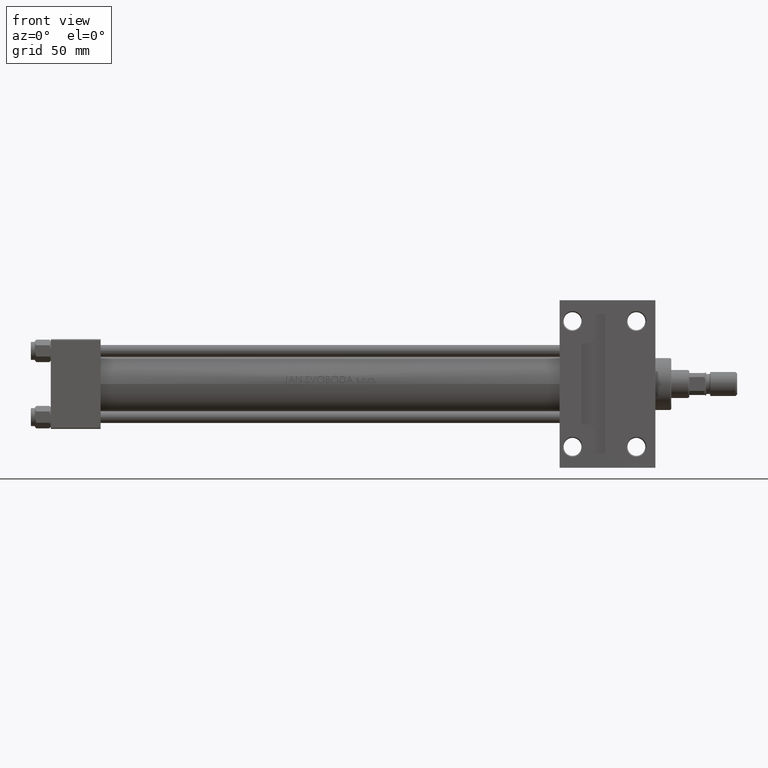
[diagram: clean part render]
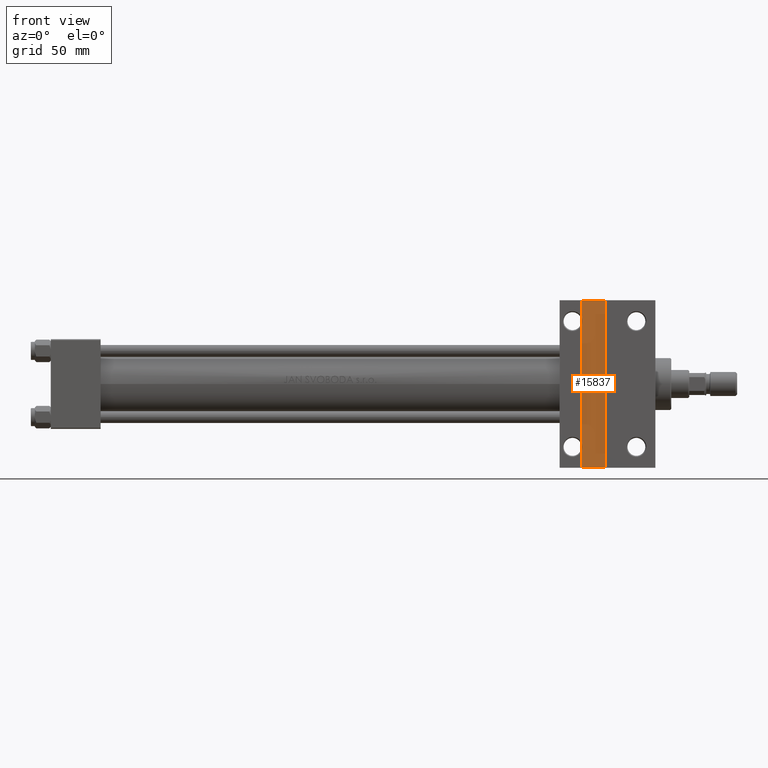
[diagram: same view with one face highlighted and labeled with its STEP entity id]
A machine part, front view. The second image highlights one B-rep face of the part: STEP entity #15837.
In plain terms, the highlighted planar face has unit normal (0, -1, 0).
Its self-contained STEP definition (entity closure, byte-faithful):
#442 = DIRECTION ( 'NONE',  ( 0.000000000000000000, 1.000000000000000000, 0.000000000000000000 ) ) ;
#732 = CARTESIAN_POINT ( 'NONE',  ( 277.9999999999999432, -41.99999999999997868, -20.00000000000000000 ) ) ;
#923 = LINE ( 'NONE', #34746, #26955 ) ;
#2377 = EDGE_CURVE ( 'NONE', #11963, #6543, #14196, .T. ) ;
#3969 = VECTOR ( 'NONE', #28829, 1000.000000000000000 ) ;
#4867 = FACE_OUTER_BOUND ( 'NONE', #39597, .T. ) ;
#6543 = VERTEX_POINT ( 'NONE', #732 ) ;
#6788 = EDGE_CURVE ( 'NONE', #29825, #22546, #923, .T. ) ;
#7563 = CARTESIAN_POINT ( 'NONE',  ( 265.9999999999999432, 41.99999999999997868, -20.00000000000000000 ) ) ;
#7816 = EDGE_CURVE ( 'NONE', #22546, #11963, #40696, .T. ) ;
#10197 = VECTOR ( 'NONE', #48059, 1000.000000000000000 ) ;
#10301 = CARTESIAN_POINT ( 'NONE',  ( 265.9999999999999432, -41.99999999999997868, -20.00000000000000000 ) ) ;
#11680 = CARTESIAN_POINT ( 'NONE',  ( 0.000000000000000000, 0.000000000000000000, -20.00000000000000000 ) ) ;
#11963 = VERTEX_POINT ( 'NONE', #44057 ) ;
#14196 = LINE ( 'NONE', #43187, #3969 ) ;
#15548 = ORIENTED_EDGE ( 'NONE', *, *, #6788, .T. ) ;
#15837 = ADVANCED_FACE ( 'NONE', ( #4867 ), #41412, .T. ) ;
#15907 = ORIENTED_EDGE ( 'NONE', *, *, #44348, .T. ) ;
#17623 = LINE ( 'NONE', #10301, #10197 ) ;
#18682 = CARTESIAN_POINT ( 'NONE',  ( 265.9999999999999432, -41.99999999999997868, -20.00000000000000000 ) ) ;
#22487 = AXIS2_PLACEMENT_3D ( 'NONE', #11680, #38445, #46012 ) ;
#22546 = VERTEX_POINT ( 'NONE', #30948 ) ;
#26955 = VECTOR ( 'NONE', #442, 1000.000000000000000 ) ;
#28613 = ORIENTED_EDGE ( 'NONE', *, *, #7816, .T. ) ;
#28829 = DIRECTION ( 'NONE',  ( -0.000000000000000000, -1.000000000000000000, -0.000000000000000000 ) ) ;
#29825 = VERTEX_POINT ( 'NONE', #18682 ) ;
#30948 = CARTESIAN_POINT ( 'NONE',  ( 265.9999999999999432, 41.99999999999997868, -20.00000000000000000 ) ) ;
#33638 = DIRECTION ( 'NONE',  ( 1.000000000000000000, 0.000000000000000000, 0.000000000000000000 ) ) ;
#34746 = CARTESIAN_POINT ( 'NONE',  ( 265.9999999999999432, -41.99999999999997868, -20.00000000000000000 ) ) ;
#38445 = DIRECTION ( 'NONE',  ( 0.000000000000000000, 0.000000000000000000, -1.000000000000000000 ) ) ;
#39597 = EDGE_LOOP ( 'NONE', ( #44646, #15907, #15548, #28613 ) ) ;
#40696 = LINE ( 'NONE', #7563, #46407 ) ;
#41412 = PLANE ( 'NONE',  #22487 ) ;
#43187 = CARTESIAN_POINT ( 'NONE',  ( 277.9999999999999432, -41.99999999999997868, -20.00000000000000000 ) ) ;
#44057 = CARTESIAN_POINT ( 'NONE',  ( 277.9999999999999432, 41.99999999999997868, -20.00000000000000000 ) ) ;
#44348 = EDGE_CURVE ( 'NONE', #6543, #29825, #17623, .T. ) ;
#44646 = ORIENTED_EDGE ( 'NONE', *, *, #2377, .T. ) ;
#46012 = DIRECTION ( 'NONE',  ( -1.000000000000000000, 0.000000000000000000, -0.000000000000000000 ) ) ;
#46407 = VECTOR ( 'NONE', #33638, 1000.000000000000000 ) ;
#48059 = DIRECTION ( 'NONE',  ( -1.000000000000000000, -0.000000000000000000, -0.000000000000000000 ) ) ;